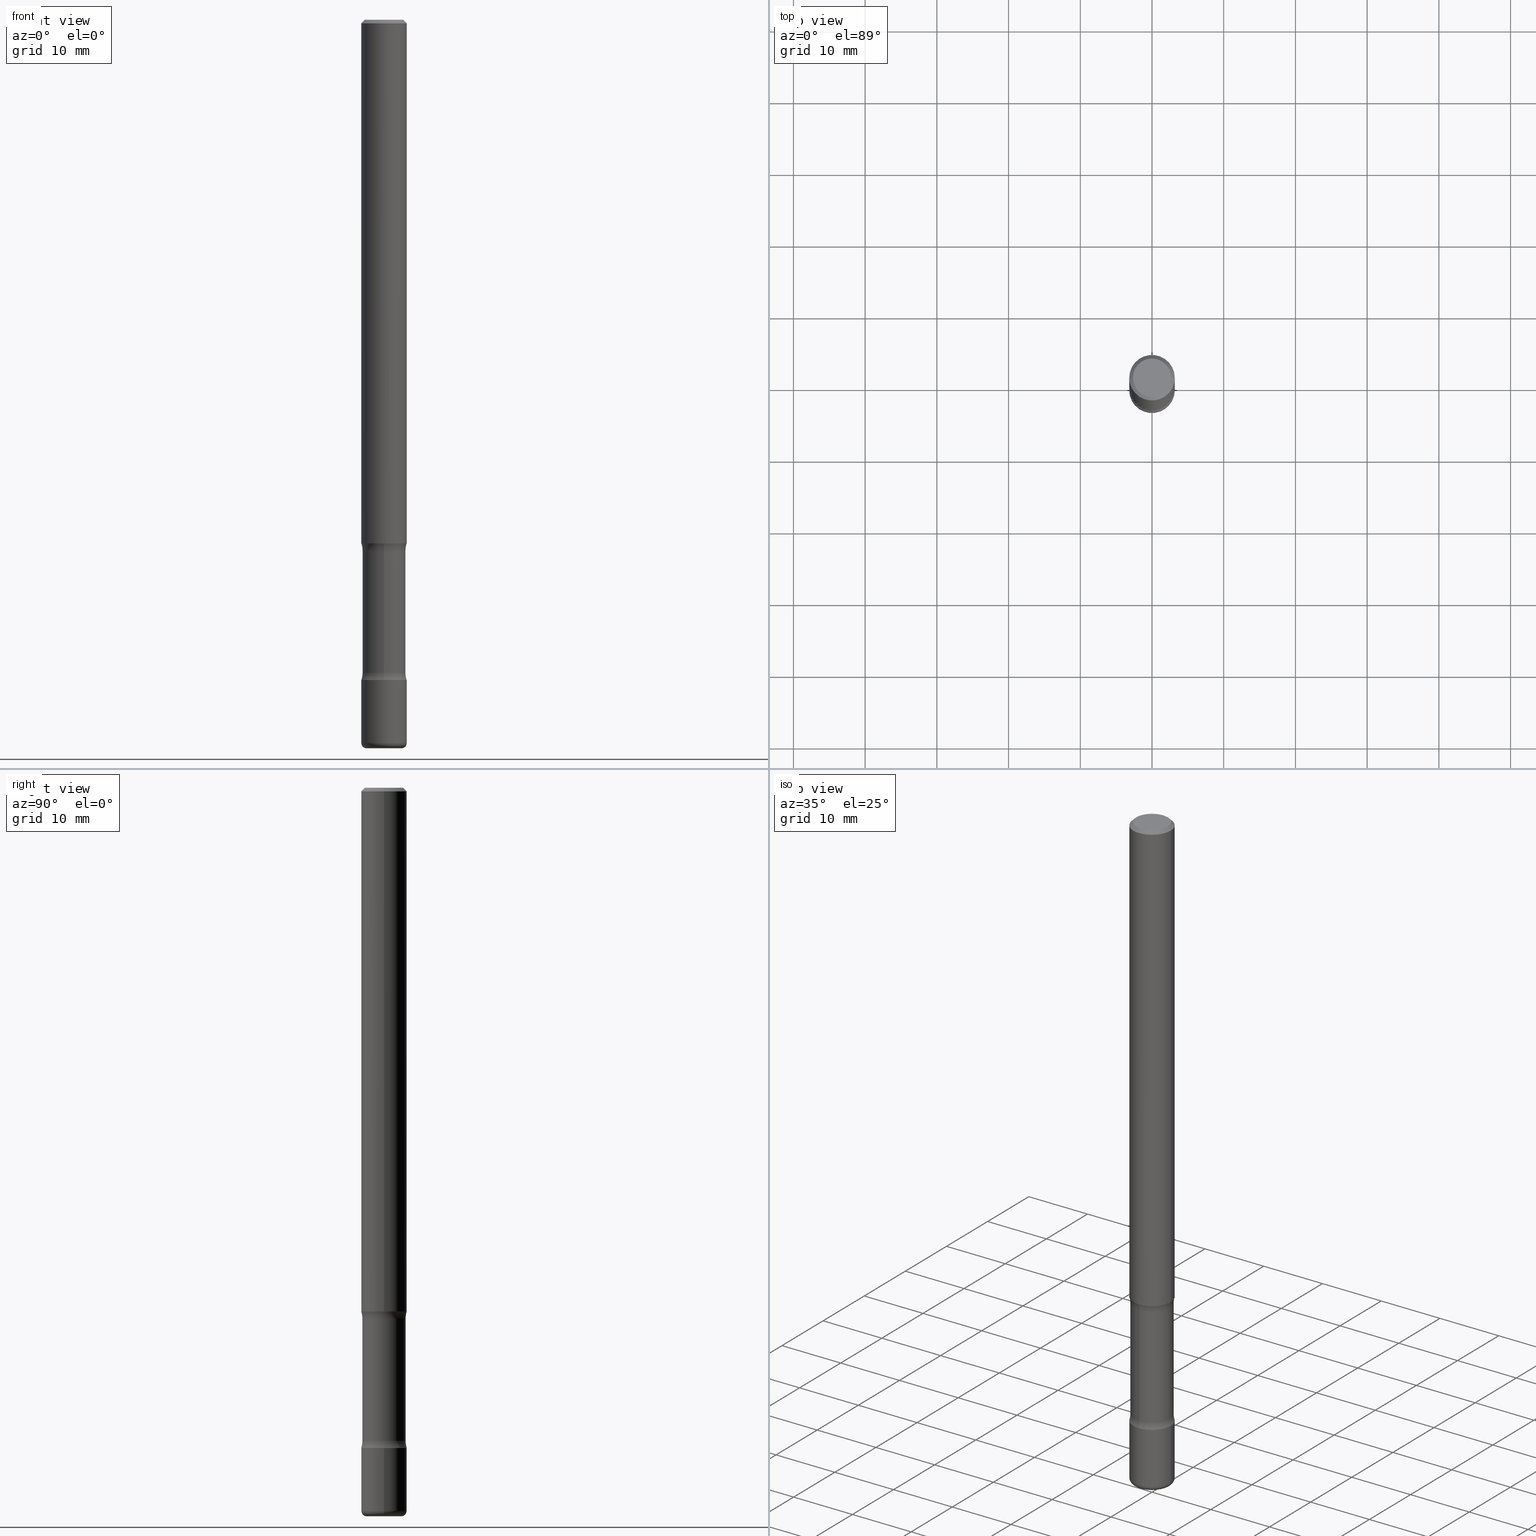
[diagram: canonical four-view strip — front | top / right | iso, engineering-drawing reading convention]
A machine part, canonical four-view strip (front | top / right | iso — engineering-drawing reading convention). The complete STEP part file that produces these views, byte-faithful:
ISO-10303-21;
HEADER;
FILE_DESCRIPTION (( 'STEP AP203' ),
    '1' );
FILE_NAME ('35180.STEP',
    '2024-03-01T23:18:33',
    ( '' ),
    ( '' ),
    'SwSTEP 2.0',
    'SolidWorks 2023',
    '' );
FILE_SCHEMA (( 'CONFIG_CONTROL_DESIGN' ));
ENDSEC;

DATA;
#1 = EDGE_LOOP ( 'NONE', ( #332, #234, #474, #242 ) ) ;
#2 = MANIFOLD_SOLID_BREP ( 'Body-Move/Copy2[4]', #68 ) ;
#3 = DIRECTION ( 'NONE',  ( -2.445468806185136597E-29, 3.491481338843145583E-15, 1.000000000000000000 ) ) ;
#4 = ORIENTED_EDGE ( 'NONE', *, *, #256, .T. ) ;
#5 = CARTESIAN_POINT ( 'NONE',  ( 0.1250000000000003053, -9.273918764983065184E-16, -0.02000000000000000042 ) ) ;
#6 = EDGE_LOOP ( 'NONE', ( #233, #529 ) ) ;
#7 = CARTESIAN_POINT ( 'NONE',  ( -8.575622497213667993E-16, -0.1250000000000094369, -2.874999999999999112 ) ) ;
#8 = FACE_OUTER_BOUND ( 'NONE', #57, .T. ) ;
#9 = ORIENTED_EDGE ( 'NONE', *, *, #169, .F. ) ;
#10 = ORIENTED_EDGE ( 'NONE', *, *, #407, .T. ) ;
#11 = EDGE_CURVE ( 'NONE', #224, #275, #52, .T. ) ;
#12 = DIRECTION ( 'NONE',  ( 1.000000000000000000, -6.982962677686266711E-15, 4.876176775795935793E-29 ) ) ;
#13 = ORIENTED_EDGE ( 'NONE', *, *, #51, .T. ) ;
#14 = CC_DESIGN_DATE_AND_TIME_ASSIGNMENT ( #299, #295, ( #546 ) ) ;
#15 = DIRECTION ( 'NONE',  ( -2.445468806185136877E-29, 3.491481338843145188E-15, 1.000000000000000000 ) ) ;
#16 = VERTEX_POINT ( 'NONE', #452 ) ;
#17 = AXIS2_PLACEMENT_3D ( 'NONE', #156, #325, #409 ) ;
#18 = CIRCLE ( 'NONE', #383, 0.1250000000000007216 ) ;
#19 = DIRECTION ( 'NONE',  ( 6.982962677686265922E-15, 1.000000000000000000, -4.610713913357408992E-15 ) ) ;
#20 = ORIENTED_EDGE ( 'NONE', *, *, #209, .F. ) ;
#21 = EDGE_CURVE ( 'NONE', #22, #70, #181, .T. ) ;
#22 = VERTEX_POINT ( 'NONE', #445 ) ;
#23 = CARTESIAN_POINT ( 'NONE',  ( 7.371511363986941038E-29, -9.549980254529470283E-15, -2.875000000000000000 ) ) ;
#24 = DIRECTION ( 'NONE',  ( -2.445468806185136597E-29, 3.491481338843145583E-15, 1.000000000000000000 ) ) ;
#25 = VERTEX_POINT ( 'NONE', #53 ) ;
#26 = AXIS2_PLACEMENT_3D ( 'NONE', #125, #184, #171 ) ;
#27 = AXIS2_PLACEMENT_3D ( 'NONE', #548, #416, #293 ) ;
#28 = EDGE_CURVE ( 'NONE', #229, #25, #538, .T. ) ;
#29 = DIRECTION ( 'NONE',  ( 2.438088387897960049E-29, -3.491481338843145188E-15, -1.000000000000000000 ) ) ;
#30 = CARTESIAN_POINT ( 'NONE',  ( 7.461849707020489803E-29, -9.698839812992284778E-15, -2.914783790669067010 ) ) ;
#31 = DIRECTION ( 'NONE',  ( -1.000000000000000000, 6.982962677686265922E-15, 0.000000000000000000 ) ) ;
#32 = CC_DESIGN_PERSON_AND_ORGANIZATION_ASSIGNMENT ( #338, #178, ( #546 ) ) ;
#33 = AXIS2_PLACEMENT_3D ( 'NONE', #476, #310, #152 ) ;
#34 = FACE_OUTER_BOUND ( 'NONE', #6, .T. ) ;
#35 = CARTESIAN_POINT ( 'NONE',  ( 8.791379894074205653E-29, -1.248356739067611129E-14, -3.585216209330933435 ) ) ;
#36 = DIRECTION ( 'NONE',  ( 1.991084077912239862E-29, -4.142186131702575093E-15, -1.000000000000000000 ) ) ;
#37 = DIRECTION ( 'NONE',  ( 1.000000000000000000, -6.982962677686273810E-15, 0.000000000000000000 ) ) ;
#38 = APPROVAL_ROLE ( '' ) ;
#39 = CYLINDRICAL_SURFACE ( 'NONE', #208, 0.1184999999999996750 ) ;
#40 = EDGE_CURVE ( 'NONE', #88, #70, #304, .T. ) ;
#41 = AXIS2_PLACEMENT_3D ( 'NONE', #113, #29, #282 ) ;
#42 = DIMENSIONAL_EXPONENTS ( 1.000000000000000000, 0.000000000000000000, 0.000000000000000000, 0.000000000000000000, 0.000000000000000000, 0.000000000000000000, 0.000000000000000000 ) ;
#43 = ADVANCED_FACE ( 'NONE', ( #63 ), #279, .T. ) ;
#44 = CARTESIAN_POINT ( 'NONE',  ( -0.1050000000000003847, 7.681258945454915470E-16, -4.695363739110977184E-17 ) ) ;
#45 = PERSON_AND_ORGANIZATION_ROLE ( 'design_owner' ) ;
#46 = PLANE ( 'NONE',  #215 ) ;
#47 = APPROVAL ( #516, 'UNSPECIFIED' ) ;
#48 = ORIENTED_EDGE ( 'NONE', *, *, #400, .T. ) ;
#49 = DIRECTION ( 'NONE',  ( 1.991084077912239862E-29, -4.142186131702575093E-15, -1.000000000000000000 ) ) ;
#50 = ORIENTED_EDGE ( 'NONE', *, *, #169, .T. ) ;
#51 = EDGE_CURVE ( 'NONE', #358, #359, #274, .T. ) ;
#52 = CIRCLE ( 'NONE', #17, 0.1050000000000003847 ) ;
#53 = CARTESIAN_POINT ( 'NONE',  ( -0.09500000000000041744, -1.313195612595381844E-14, -4.000000000000000000 ) ) ;
#54 = ORIENTED_EDGE ( 'NONE', *, *, #549, .F. ) ;
#55 = ORGANIZATION ( 'UNSPECIFIED', 'UNSPECIFIED', '' ) ;
#56 = PLANE ( 'NONE',  #138 ) ;
#57 = EDGE_LOOP ( 'NONE', ( #100, #347, #361, #367 ) ) ;
#58 = ORIENTED_EDGE ( 'NONE', *, *, #84, .F. ) ;
#59 = CARTESIAN_POINT ( 'NONE',  ( 8.864824422421121284E-29, -1.265661985330640417E-14, -3.625000000000000444 ) ) ;
#60 = CC_DESIGN_PERSON_AND_ORGANIZATION_ASSIGNMENT ( #432, #425, ( #371 ) ) ;
#61 = ORIENTED_EDGE ( 'NONE', *, *, #301, .F. ) ;
#62 = DIRECTION ( 'NONE',  ( 6.982962677686265922E-15, 1.000000000000000000, -4.370956789862825883E-15 ) ) ;
#63 = FACE_OUTER_BOUND ( 'NONE', #187, .T. ) ;
#64 = DIRECTION ( 'NONE',  ( 1.000000000000000000, -6.860497997771530774E-15, 4.832830044206491298E-29 ) ) ;
#65 = DIRECTION ( 'NONE',  ( 6.982962677686266711E-15, 1.000000000000000000, -4.370956789862808528E-15 ) ) ;
#66 = CARTESIAN_POINT ( 'NONE',  ( 8.864824422421121284E-29, -1.265661985330640417E-14, -3.625000000000000444 ) ) ;
#67 = EDGE_CURVE ( 'NONE', #536, #356, #296, .T. ) ;
#68 = CLOSED_SHELL ( 'NONE', ( #258, #503, #72, #160, #331, #170, #188, #457 ) ) ;
#69 = AXIS2_PLACEMENT_3D ( 'NONE', #484, #97, #276 ) ;
#70 = VERTEX_POINT ( 'NONE', #240 ) ;
#71 =( NAMED_UNIT ( * ) SI_UNIT ( $, .STERADIAN. ) SOLID_ANGLE_UNIT ( ) );
#72 = ADVANCED_FACE ( 'NONE', ( #408 ), #413, .F. ) ;
#73 = DIRECTION ( 'NONE',  ( -1.000000000000000000, 6.982962677686265922E-15, -4.883557194083112340E-29 ) ) ;
#74 = DIRECTION ( 'NONE',  ( 6.982962677686266711E-15, 1.000000000000000000, -4.370956789862808528E-15 ) ) ;
#75 = ADVANCED_FACE ( 'NONE', ( #34 ), #502, .F. ) ;
#76 = PLANE ( 'NONE',  #41 ) ;
#77 = CIRCLE ( 'NONE', #462, 0.1250000000000003608 ) ;
#78 = APPROVAL_PERSON_ORGANIZATION ( #342, #552, #470 ) ;
#79 = COORDINATED_UNIVERSAL_TIME_OFFSET ( 5, 0, .BEHIND. ) ;
#80 = DIRECTION ( 'NONE',  ( -2.445468806185136597E-29, 3.491481338843145583E-15, 1.000000000000000000 ) ) ;
#81 = PERSON_AND_ORGANIZATION ( #504, #55 ) ;
#82 = EDGE_CURVE ( 'NONE', #224, #16, #379, .T. ) ;
#83 = DIRECTION ( 'NONE',  ( 1.000000000000000000, -6.982962677686266711E-15, 4.876176775795935793E-29 ) ) ;
#84 = EDGE_CURVE ( 'NONE', #431, #22, #333, .T. ) ;
#85 = DATE_AND_TIME ( #467, #499 ) ;
#86 = CARTESIAN_POINT ( 'NONE',  ( 9.611480951638210847E-29, -1.420993965269486716E-14, -4.000000000000000000 ) ) ;
#87 = AXIS2_PLACEMENT_3D ( 'NONE', #322, #196, #520 ) ;
#88 = VERTEX_POINT ( 'NONE', #7 ) ;
#89 = APPROVAL_DATE_TIME ( #174, #531 ) ;
#90 = CARTESIAN_POINT ( 'NONE',  ( 0.09500000000000041744, -1.462930680975278051E-14, -4.000000000000000000 ) ) ;
#91 = CARTESIAN_POINT ( 'NONE',  ( 0.1250000000000006384, -1.091087918388483276E-14, -2.875000000000000000 ) ) ;
#92 = ORIENTED_EDGE ( 'NONE', *, *, #21, .T. ) ;
#93 = CALENDAR_DATE ( 2024, 1, 3 ) ;
#94 = CARTESIAN_POINT ( 'NONE',  ( -2.199483274483249435E-29, -2.850133821655908390E-14, -3.624999999999999556 ) ) ;
#95 = EDGE_LOOP ( 'NONE', ( #541, #477, #147, #144 ) ) ;
#96 = ORIENTED_EDGE ( 'NONE', *, *, #308, .F. ) ;
#97 = DIRECTION ( 'NONE',  ( -2.445468806185136597E-29, 3.491481338843145583E-15, 1.000000000000000000 ) ) ;
#98 = TOROIDAL_SURFACE ( 'NONE', #328, 0.09500000000000032030, 0.03000000000000044992 ) ;
#99 = DIRECTION ( 'NONE',  ( -6.982962677686265922E-15, -1.000000000000000000, 0.000000000000000000 ) ) ;
#100 = ORIENTED_EDGE ( 'NONE', *, *, #250, .F. ) ;
#101 = PRODUCT_DEFINITION ( 'UNKNOWN', '', #371, #540 ) ;
#102 = CIRCLE ( 'NONE', #289, 0.1250000000000007216 ) ;
#103 = FACE_OUTER_BOUND ( 'NONE', #392, .T. ) ;
#104 = DIRECTION ( 'NONE',  ( -1.000000000000000000, 6.982962677686265922E-15, 0.000000000000000000 ) ) ;
#105 = ORIENTED_EDGE ( 'NONE', *, *, #250, .T. ) ;
#106 = DIRECTION ( 'NONE',  ( -2.445468806185136597E-29, 3.491481338843145583E-15, 1.000000000000000000 ) ) ;
#107 = ORIENTED_EDGE ( 'NONE', *, *, #495, .F. ) ;
#108 = ADVANCED_FACE ( 'NONE', ( #190 ), #98, .T. ) ;
#109 = CYLINDRICAL_SURFACE ( 'NONE', #415, 0.1250000000000004718 ) ;
#110 = DIRECTION ( 'NONE',  ( 6.982962677686265922E-15, 1.000000000000000000, -4.370956789862825883E-15 ) ) ;
#111 = VECTOR ( 'NONE', #15, 39.37007874015748143 ) ;
#112 = CARTESIAN_POINT ( 'NONE',  ( -0.1250000000000006384, -4.165740818275317715E-15, -2.875000000000000000 ) ) ;
#113 = CARTESIAN_POINT ( 'NONE',  ( 9.781875224740546387E-29, -1.396592535537258233E-14, -4.000000000000000000 ) ) ;
#114 = CARTESIAN_POINT ( 'NONE',  ( 8.274810773059163455E-16, 0.1184999999999854642, -4.000000000000000888 ) ) ;
#115 = VERTEX_POINT ( 'NONE', #91 ) ;
#116 = CC_DESIGN_PERSON_AND_ORGANIZATION_ASSIGNMENT ( #475, #420, ( #101 ) ) ;
#117 = DIRECTION ( 'NONE',  ( -2.445468806185136877E-29, 3.491481338843145188E-15, 1.000000000000000000 ) ) ;
#118 = VECTOR ( 'NONE', #557, 39.37007874015748143 ) ;
#119 = AXIS2_PLACEMENT_3D ( 'NONE', #418, #330, #31 ) ;
#120 = CARTESIAN_POINT ( 'NONE',  ( 9.781875224740546387E-29, -1.396592535537258233E-14, -4.000000000000000000 ) ) ;
#121 = DIRECTION ( 'NONE',  ( 1.000000000000000000, -6.982962677686271444E-15, 0.000000000000000000 ) ) ;
#122 = ORIENTED_EDGE ( 'NONE', *, *, #209, .T. ) ;
#123 = CARTESIAN_POINT ( 'NONE',  ( 7.332110811570605881E-16, 0.1050000000000003847, -3.900823592740838734E-16 ) ) ;
#124 = PERSON_AND_ORGANIZATION ( #504, #55 ) ;
#125 = CARTESIAN_POINT ( 'NONE',  ( 7.450724236147113002E-29, -9.714772120505436887E-15, -2.914783790669067010 ) ) ;
#126 = LOCAL_TIME ( 18, 18, 33.00000000000000000, #79 ) ;
#127 = CC_DESIGN_APPROVAL ( #47, ( #546 ) ) ;
#128 = PERSON_AND_ORGANIZATION ( #504, #55 ) ;
#129 = EDGE_CURVE ( 'NONE', #229, #401, #414, .T. ) ;
#130 = PLANE ( 'NONE',  #381 ) ;
#131 = UNCERTAINTY_MEASURE_WITH_UNIT (LENGTH_MEASURE( 1.000000000000000082E-05 ), #500, 'distance_accuracy_value', 'NONE');
#132 = CALENDAR_DATE ( 2024, 1, 3 ) ;
#133 = FACE_OUTER_BOUND ( 'NONE', #183, .T. ) ;
#134 = PERSON_AND_ORGANIZATION_ROLE ( 'design_supplier' ) ;
#135 = DIRECTION ( 'NONE',  ( 7.105427357601001859E-15, 1.000000000000000000, -3.491481338843145583E-15 ) ) ;
#136 = TOROIDAL_SURFACE ( 'NONE', #252, 0.2434999999999992726, 0.1249999999999999306 ) ;
#137 = DIRECTION ( 'NONE',  ( 1.000000000000000000, -6.982962677686266711E-15, 4.883557194083112901E-29 ) ) ;
#138 = AXIS2_PLACEMENT_3D ( 'NONE', #239, #155, #444 ) ;
#139 = PRODUCT_DEFINITION_SHAPE ( 'NONE', 'NONE',  #101 ) ;
#140 = FACE_OUTER_BOUND ( 'NONE', #286, .T. ) ;
#141 = ORIENTED_EDGE ( 'NONE', *, *, #40, .T. ) ;
#142 = DIRECTION ( 'NONE',  ( 1.991084077912239862E-29, -4.142186131702575093E-15, -1.000000000000000000 ) ) ;
#143 = CARTESIAN_POINT ( 'NONE',  ( 4.890937612370273159E-31, -6.982962677686291609E-17, -0.02000000000000000042 ) ) ;
#144 = ORIENTED_EDGE ( 'NONE', *, *, #129, .F. ) ;
#145 = DIRECTION ( 'NONE',  ( -1.000000000000000000, 6.982962677686265922E-15, -4.883557194083112340E-29 ) ) ;
#146 = CARTESIAN_POINT ( 'NONE',  ( 9.611480951638210847E-29, -1.420993965269486716E-14, -4.000000000000000000 ) ) ;
#147 = ORIENTED_EDGE ( 'NONE', *, *, #294, .F. ) ;
#148 = AXIS2_PLACEMENT_3D ( 'NONE', #391, #518, #422 ) ;
#149 = CIRCLE ( 'NONE', #280, 0.1249999999999998751 ) ;
#150 = DIRECTION ( 'NONE',  ( 1.000000000000000000, -6.982962677686271444E-15, 0.000000000000000000 ) ) ;
#151 = ORIENTED_EDGE ( 'NONE', *, *, #82, .T. ) ;
#152 = DIRECTION ( 'NONE',  ( 1.000000000000000000, -6.982962677686265922E-15, 4.876176775795935232E-29 ) ) ;
#153 = VERTEX_POINT ( 'NONE', #343 ) ;
#154 = CARTESIAN_POINT ( 'NONE',  ( -0.1250000000000005551, 8.881784197001291766E-16, -6.148668862818658852E-30 ) ) ;
#155 = DIRECTION ( 'NONE',  ( 1.991084077912239581E-29, -4.142186131702575093E-15, -1.000000000000000000 ) ) ;
#156 = CARTESIAN_POINT ( 'NONE',  ( 1.148236555768741665E-45, -1.639377487418492057E-31, -4.695363739110452099E-17 ) ) ;
#157 = CARTESIAN_POINT ( 'NONE',  ( 0.000000000000000000, 0.000000000000000000, 0.000000000000000000 ) ) ;
#158 = CC_DESIGN_PERSON_AND_ORGANIZATION_ASSIGNMENT ( #128, #45, ( #352 ) ) ;
#159 = DIRECTION ( 'NONE',  ( 1.991084077912239862E-29, -4.142186131702575093E-15, -1.000000000000000000 ) ) ;
#160 = ADVANCED_FACE ( 'NONE', ( #468 ), #136, .F. ) ;
#161 = CC_DESIGN_APPROVAL ( #552, ( #101 ) ) ;
#162 = FACE_OUTER_BOUND ( 'NONE', #231, .T. ) ;
#163 = CARTESIAN_POINT ( 'NONE',  ( 0.000000000000000000, 0.000000000000000000, 0.000000000000000000 ) ) ;
#164 = EDGE_CURVE ( 'NONE', #275, #224, #207, .T. ) ;
#165 = DIRECTION ( 'NONE',  ( 1.000000000000000000, 0.000000000000000000, 0.000000000000000000 ) ) ;
#166 = AXIS2_PLACEMENT_3D ( 'NONE', #163, #492, #375 ) ;
#167 = APPLICATION_PROTOCOL_DEFINITION ( 'international standard', 'config_control_design', 1994, #455 ) ;
#168 = APPLICATION_PROTOCOL_DEFINITION ( 'international standard', 'config_control_design', 1994, #180 ) ;
#169 = EDGE_CURVE ( 'NONE', #494, #359, #77, .T. ) ;
#170 = ADVANCED_FACE ( 'NONE', ( #344 ), #46, .F. ) ;
#171 = DIRECTION ( 'NONE',  ( 6.982962677686265922E-15, 1.000000000000000000, -4.610713913357430291E-15 ) ) ;
#172 = CIRCLE ( 'NONE', #319, 0.09500000000000041744 ) ;
#173 = CIRCLE ( 'NONE', #498, 0.1250000000000006384 ) ;
#174 = DATE_AND_TIME ( #132, #126 ) ;
#175 = CARTESIAN_POINT ( 'NONE',  ( -8.575622497213553609E-16, -0.1250000000000130729, -3.624999999999999556 ) ) ;
#176 = DIRECTION ( 'NONE',  ( 1.000000000000000000, -6.982962677686266711E-15, 4.874400871621220839E-29 ) ) ;
#177 = CARTESIAN_POINT ( 'NONE',  ( 9.708511160554990630E-29, -1.386118091520728581E-14, -3.969999999999999307 ) ) ;
#178 = PERSON_AND_ORGANIZATION_ROLE ( 'classification_officer' ) ;
#179 = DIRECTION ( 'NONE',  ( 6.982962677686265922E-15, 1.000000000000000000, -4.142186131702575093E-15 ) ) ;
#180 = APPLICATION_CONTEXT ( 'configuration controlled 3d designs of mechanical parts and assemblies' ) ;
#181 = CIRCLE ( 'NONE', #339, 0.1249999999999999306 ) ;
#182 = AXIS2_PLACEMENT_3D ( 'NONE', #446, #64, #488 ) ;
#183 = EDGE_LOOP ( 'NONE', ( #429, #105, #514, #439 ) ) ;
#184 = DIRECTION ( 'NONE',  ( 1.991084077912239862E-29, -4.142186131702575093E-15, -1.000000000000000000 ) ) ;
#185 = ORIENTED_EDGE ( 'NONE', *, *, #129, .T. ) ;
#186 = CARTESIAN_POINT ( 'NONE',  ( 8.274810773059099360E-16, 0.1184999999999874487, -3.585216209330933879 ) ) ;
#187 = EDGE_LOOP ( 'NONE', ( #263, #151, #122, #268 ) ) ;
#188 = ADVANCED_FACE ( 'NONE', ( #469 ), #526, .F. ) ;
#189 = ORIENTED_EDGE ( 'NONE', *, *, #40, .F. ) ;
#190 = FACE_OUTER_BOUND ( 'NONE', #317, .T. ) ;
#191 = DIRECTION ( 'NONE',  ( -2.445468806185136597E-29, 3.491481338843145583E-15, 1.000000000000000000 ) ) ;
#192 = ADVANCED_BREP_SHAPE_REPRESENTATION ( '35180', ( #202, #198, #2, #217 ), #377 ) ;
#193 = AXIS2_PLACEMENT_3D ( 'NONE', #281, #159, #490 ) ;
#194 = DIRECTION ( 'NONE',  ( 1.000000000000000000, -6.982962677686266711E-15, 4.883557194083112901E-29 ) ) ;
#195 = ORIENTED_EDGE ( 'NONE', *, *, #164, .F. ) ;
#196 = DIRECTION ( 'NONE',  ( -2.438088387897960049E-29, 3.491481338843145188E-15, 1.000000000000000000 ) ) ;
#197 = CARTESIAN_POINT ( 'NONE',  ( -0.1250000000000003608, -1.237072196455671739E-14, -3.625000000000000444 ) ) ;
#198 = MANIFOLD_SOLID_BREP ( 'Body-Move/Copy2[2]', #370 ) ;
#199 = AXIS2_PLACEMENT_3D ( 'NONE', #558, #80, #513 ) ;
#200 = AXIS2_PLACEMENT_3D ( 'NONE', #66, #290, #74 ) ;
#201 = DIRECTION ( 'NONE',  ( 6.982962677686265922E-15, 1.000000000000000000, -4.142186131702575093E-15 ) ) ;
#202 = MANIFOLD_SOLID_BREP ( 'Body-Move/Copy2[1]', #362 ) ;
#203 = FACE_OUTER_BOUND ( 'NONE', #525, .T. ) ;
#204 = ORIENTED_EDGE ( 'NONE', *, *, #51, .F. ) ;
#205 = DIRECTION ( 'NONE',  ( 6.982962677686265922E-15, 1.000000000000000000, -4.142186131702575093E-15 ) ) ;
#206 = CARTESIAN_POINT ( 'NONE',  ( 0.000000000000000000, 0.000000000000000000, 0.000000000000000000 ) ) ;
#207 = CIRCLE ( 'NONE', #553, 0.1050000000000003847 ) ;
#208 = AXIS2_PLACEMENT_3D ( 'NONE', #86, #216, #555 ) ;
#209 = EDGE_CURVE ( 'NONE', #16, #238, #447, .T. ) ;
#210 = EDGE_CURVE ( 'NONE', #25, #358, #288, .T. ) ;
#211 = PERSON_AND_ORGANIZATION ( #504, #55 ) ;
#212 = EDGE_CURVE ( 'NONE', #22, #431, #270, .T. ) ;
#213 = COORDINATED_UNIVERSAL_TIME_OFFSET ( 5, 0, .BEHIND. ) ;
#214 = LINE ( 'NONE', #380, #118 ) ;
#215 = AXIS2_PLACEMENT_3D ( 'NONE', #94, #222, #509 ) ;
#216 = DIRECTION ( 'NONE',  ( 1.991084077912239862E-29, -4.142186131702575093E-15, -1.000000000000000000 ) ) ;
#217 = AXIS2_PLACEMENT_3D ( 'NONE', #206, #543, #165 ) ;
#218 = DATE_AND_TIME ( #378, #297 ) ;
#219 = CYLINDRICAL_SURFACE ( 'NONE', #33, 0.1250000000000005551 ) ;
#220 = ADVANCED_FACE ( 'NONE', ( #384 ), #130, .F. ) ;
#221 = COORDINATED_UNIVERSAL_TIME_OFFSET ( 5, 0, .BEHIND. ) ;
#222 = DIRECTION ( 'NONE',  ( -1.991084077912239581E-29, 4.142186131702575093E-15, 1.000000000000000000 ) ) ;
#223 = ORIENTED_EDGE ( 'NONE', *, *, #28, .F. ) ;
#224 = VERTEX_POINT ( 'NONE', #255 ) ;
#225 = CARTESIAN_POINT ( 'NONE',  ( 1.148236555768741665E-45, -1.639377487418492057E-31, -4.695363739110452099E-17 ) ) ;
#226 = AXIS2_PLACEMENT_3D ( 'NONE', #406, #313, #19 ) ;
#227 = ORIENTED_EDGE ( 'NONE', *, *, #450, .T. ) ;
#228 = CARTESIAN_POINT ( 'NONE',  ( -0.1250000000000007494, -1.297300249550715584E-14, -3.969999999999999307 ) ) ;
#229 = VERTEX_POINT ( 'NONE', #90 ) ;
#230 = ADVANCED_FACE ( 'NONE', ( #300 ), #298, .T. ) ;
#231 = EDGE_LOOP ( 'NONE', ( #204, #48, #485, #442 ) ) ;
#232 = FACE_OUTER_BOUND ( 'NONE', #473, .T. ) ;
#233 = ORIENTED_EDGE ( 'NONE', *, *, #164, .T. ) ;
#234 = ORIENTED_EDGE ( 'NONE', *, *, #301, .T. ) ;
#235 = LINE ( 'NONE', #402, #479 ) ;
#236 = CIRCLE ( 'NONE', #527, 0.1184999999999999387 ) ;
#237 = CARTESIAN_POINT ( 'NONE',  ( 1.700351412016693373E-15, 0.2434999999999874765, -3.585216209330934323 ) ) ;
#238 = VERTEX_POINT ( 'NONE', #423 ) ;
#239 = CARTESIAN_POINT ( 'NONE',  ( 7.030722817782267716E-29, -1.003800884917404311E-14, -2.875000000000000000 ) ) ;
#240 = CARTESIAN_POINT ( 'NONE',  ( 8.728703347108566043E-16, 0.1249999999999903688, -2.875000000000000444 ) ) ;
#241 = CARTESIAN_POINT ( 'NONE',  ( 7.030722817782267716E-29, -1.003800884917404311E-14, -2.875000000000000000 ) ) ;
#242 = ORIENTED_EDGE ( 'NONE', *, *, #67, .F. ) ;
#243 = ORIENTED_EDGE ( 'NONE', *, *, #522, .T. ) ;
#244 = AXIS2_PLACEMENT_3D ( 'NONE', #324, #530, #150 ) ;
#245 = DIRECTION ( 'NONE',  ( -2.445468806185136877E-29, 3.491481338843145188E-15, 1.000000000000000000 ) ) ;
#246 = CC_DESIGN_SECURITY_CLASSIFICATION ( #546, ( #371 ) ) ;
#247 = ORIENTED_EDGE ( 'NONE', *, *, #458, .F. ) ;
#248 = EDGE_CURVE ( 'NONE', #431, #88, #349, .T. ) ;
#249 = DIRECTION ( 'NONE',  ( 1.991084077912239862E-29, -4.142186131702575093E-15, -1.000000000000000000 ) ) ;
#250 = EDGE_CURVE ( 'NONE', #431, #153, #214, .T. ) ;
#251 = CARTESIAN_POINT ( 'NONE',  ( 0.1250000000000003608, -1.352949018801719066E-14, -3.625000000000000444 ) ) ;
#252 = AXIS2_PLACEMENT_3D ( 'NONE', #466, #49, #179 ) ;
#253 = LOCAL_TIME ( 18, 18, 33.00000000000000000, #303 ) ;
#254 = DIRECTION ( 'NONE',  ( -1.000000000000000000, 6.982962677686265922E-15, -4.876176775795935793E-29 ) ) ;
#255 = CARTESIAN_POINT ( 'NONE',  ( 0.1050000000000003847, -8.238720831321601296E-16, -4.695363739109907908E-17 ) ) ;
#256 = EDGE_CURVE ( 'NONE', #275, #238, #551, .T. ) ;
#257 = COORDINATED_UNIVERSAL_TIME_OFFSET ( 5, 0, .BEHIND. ) ;
#258 = ADVANCED_FACE ( 'NONE', ( #133 ), #39, .T. ) ;
#259 = DIRECTION ( 'NONE',  ( -2.445468806185136597E-29, 3.491481338843145583E-15, 1.000000000000000000 ) ) ;
#260 = DIRECTION ( 'NONE',  ( 2.438088387897960049E-29, -3.491481338843145188E-15, -1.000000000000000000 ) ) ;
#261 = EDGE_LOOP ( 'NONE', ( #10, #287, #20, #524 ) ) ;
#262 = SHAPE_DEFINITION_REPRESENTATION ( #139, #192 ) ;
#263 = ORIENTED_EDGE ( 'NONE', *, *, #11, .F. ) ;
#264 = CARTESIAN_POINT ( 'NONE',  ( 0.09500000000000032030, -1.452456236958748398E-14, -3.969999999999999307 ) ) ;
#265 = ORIENTED_EDGE ( 'NONE', *, *, #67, .T. ) ;
#266 = APPROVAL_STATUS ( 'not_yet_approved' ) ;
#267 = VERTEX_POINT ( 'NONE', #175 ) ;
#268 = ORIENTED_EDGE ( 'NONE', *, *, #256, .F. ) ;
#269 = CARTESIAN_POINT ( 'NONE',  ( 9.708511160554990630E-29, -1.386118091520728581E-14, -3.969999999999999307 ) ) ;
#270 = CIRCLE ( 'NONE', #26, 0.1184999999999993836 ) ;
#271 = APPROVAL_PERSON_ORGANIZATION ( #124, #531, #348 ) ;
#272 = DIRECTION ( 'NONE',  ( 1.991084077912239862E-29, -4.142186131702575093E-15, -1.000000000000000000 ) ) ;
#273 = EDGE_LOOP ( 'NONE', ( #58, #396, #141, #403 ) ) ;
#274 = LINE ( 'NONE', #154, #111 ) ;
#275 = VERTEX_POINT ( 'NONE', #44 ) ;
#276 = DIRECTION ( 'NONE',  ( 1.000000000000000000, -6.982962677686273810E-15, 0.000000000000000000 ) ) ;
#277 = ORIENTED_EDGE ( 'NONE', *, *, #535, .T. ) ;
#278 = DIRECTION ( 'NONE',  ( 1.991084077912239862E-29, -4.142186131702575093E-15, -1.000000000000000000 ) ) ;
#279 = CONICAL_SURFACE ( 'NONE', #436, 0.1250000000000003053, 0.7853981633974476129 ) ;
#280 = AXIS2_PLACEMENT_3D ( 'NONE', #23, #278, #62 ) ;
#281 = CARTESIAN_POINT ( 'NONE',  ( 7.450724236147113002E-29, -9.714772120505436887E-15, -2.914783790669067010 ) ) ;
#282 = DIRECTION ( 'NONE',  ( -1.000000000000000000, 6.982962677686265922E-15, -4.876176775795935793E-29 ) ) ;
#283 = EDGE_LOOP ( 'NONE', ( #247, #353, #515, #559 ) ) ;
#284 = ADVANCED_FACE ( 'NONE', ( #140 ), #219, .T. ) ;
#285 = CARTESIAN_POINT ( 'NONE',  ( 8.785611550260948199E-29, -1.249182798733043599E-14, -3.585216209330933435 ) ) ;
#286 = EDGE_LOOP ( 'NONE', ( #373, #13, #9, #54 ) ) ;
#287 = ORIENTED_EDGE ( 'NONE', *, *, #458, .T. ) ;
#288 = CIRCLE ( 'NONE', #506, 0.03000000000000044992 ) ;
#289 = AXIS2_PLACEMENT_3D ( 'NONE', #269, #191, #437 ) ;
#290 = DIRECTION ( 'NONE',  ( 1.991084077912239862E-29, -4.142186131702575093E-15, -1.000000000000000000 ) ) ;
#291 = FACE_OUTER_BOUND ( 'NONE', #1, .T. ) ;
#292 = EDGE_CURVE ( 'NONE', #153, #356, #448, .T. ) ;
#293 = DIRECTION ( 'NONE',  ( 1.000000000000000000, -6.982962677686273810E-15, 0.000000000000000000 ) ) ;
#294 = EDGE_CURVE ( 'NONE', #401, #358, #102, .T. ) ;
#295 = DATE_TIME_ROLE ( 'classification_date' ) ;
#296 = CIRCLE ( 'NONE', #489, 0.1250000000000001388 ) ;
#297 = LOCAL_TIME ( 18, 18, 33.00000000000000000, #221 ) ;
#298 = CYLINDRICAL_SURFACE ( 'NONE', #424, 0.1250000000000004718 ) ;
#299 = DATE_AND_TIME ( #505, #405 ) ;
#300 = FACE_OUTER_BOUND ( 'NONE', #261, .T. ) ;
#301 = EDGE_CURVE ( 'NONE', #267, #153, #340, .T. ) ;
#302 = CARTESIAN_POINT ( 'NONE',  ( -0.09500000000000032030, -1.318616531623518924E-14, -3.969999999999999307 ) ) ;
#303 = COORDINATED_UNIVERSAL_TIME_OFFSET ( 5, 0, .BEHIND. ) ;
#304 = CIRCLE ( 'NONE', #390, 0.1249999999999998751 ) ;
#305 = DIRECTION ( 'NONE',  ( -1.000000000000000000, 7.105427357601012903E-15, 0.000000000000000000 ) ) ;
#306 = ORIENTED_EDGE ( 'NONE', *, *, #556, .T. ) ;
#307 = APPROVAL_PERSON_ORGANIZATION ( #81, #47, #38 ) ;
#308 = EDGE_CURVE ( 'NONE', #536, #267, #363, .T. ) ;
#309 = APPROVAL_DATE_TIME ( #382, #552 ) ;
#310 = DIRECTION ( 'NONE',  ( -2.445468806185136597E-29, 3.491481338843145583E-15, 1.000000000000000000 ) ) ;
#311 = CARTESIAN_POINT ( 'NONE',  ( 4.890937612370273159E-31, -6.982962677686291609E-17, -0.02000000000000000042 ) ) ;
#312 = ORIENTED_EDGE ( 'NONE', *, *, #210, .F. ) ;
#313 = DIRECTION ( 'NONE',  ( 1.991084077912239862E-29, -4.142186131702575093E-15, -1.000000000000000000 ) ) ;
#314 = ORIENTED_EDGE ( 'NONE', *, *, #308, .T. ) ;
#315 = EDGE_LOOP ( 'NONE', ( #314, #243 ) ) ;
#316 = CARTESIAN_POINT ( 'NONE',  ( 0.1250000000000007494, -1.473405124991807388E-14, -3.969999999999999307 ) ) ;
#317 = EDGE_LOOP ( 'NONE', ( #312, #277, #185, #399 ) ) ;
#318 = AXIS2_PLACEMENT_3D ( 'NONE', #511, #341, #389 ) ;
#319 = AXIS2_PLACEMENT_3D ( 'NONE', #120, #419, #121 ) ;
#320 = VERTEX_POINT ( 'NONE', #112 ) ;
#321 = ORIENTED_EDGE ( 'NONE', *, *, #535, .F. ) ;
#322 = CARTESIAN_POINT ( 'NONE',  ( 7.030722817782267716E-29, -1.003800884917404311E-14, -2.875000000000000000 ) ) ;
#323 = FACE_OUTER_BOUND ( 'NONE', #283, .T. ) ;
#324 = CARTESIAN_POINT ( 'NONE',  ( 9.781875224740546387E-29, -1.396592535537258233E-14, -4.000000000000000000 ) ) ;
#325 = DIRECTION ( 'NONE',  ( -2.445468806185136597E-29, 3.491481338843145583E-15, 1.000000000000000000 ) ) ;
#326 = DIRECTION ( 'NONE',  ( 1.000000000000000000, -6.982962677686265922E-15, 0.000000000000000000 ) ) ;
#327 = DIRECTION ( 'NONE',  ( 0.7071067811865469066, -7.319954787623252890E-15, -0.7071067811865479058 ) ) ;
#328 = AXIS2_PLACEMENT_3D ( 'NONE', #177, #346, #137 ) ;
#329 = TOROIDAL_SURFACE ( 'NONE', #554, 0.2434999999999999665, 0.1250000000000001388 ) ;
#330 = DIRECTION ( 'NONE',  ( 2.445468806185136597E-29, -3.491481338843145583E-15, -1.000000000000000000 ) ) ;
#331 = ADVANCED_FACE ( 'NONE', ( #232 ), #56, .F. ) ;
#332 = ORIENTED_EDGE ( 'NONE', *, *, #522, .F. ) ;
#333 = CIRCLE ( 'NONE', #193, 0.1184999999999993836 ) ;
#334 = TOROIDAL_SURFACE ( 'NONE', #517, 0.09500000000000032030, 0.03000000000000044992 ) ;
#335 = EDGE_CURVE ( 'NONE', #115, #16, #486, .T. ) ;
#336 = DIRECTION ( 'NONE',  ( 1.991084077912239862E-29, -4.142186131702575093E-15, -1.000000000000000000 ) ) ;
#337 = DIRECTION ( 'NONE',  ( 6.982962677686265922E-15, 1.000000000000000000, -4.610713913357408992E-15 ) ) ;
#338 = PERSON_AND_ORGANIZATION ( #504, #55 ) ;
#339 = AXIS2_PLACEMENT_3D ( 'NONE', #366, #145, #99 ) ;
#340 = CIRCLE ( 'NONE', #182, 0.1250000000000001388 ) ;
#341 = DIRECTION ( 'NONE',  ( 1.991084077912239862E-29, -4.142186131702575093E-15, -1.000000000000000000 ) ) ;
#342 = PERSON_AND_ORGANIZATION ( #504, #55 ) ;
#343 = CARTESIAN_POINT ( 'NONE',  ( -8.352656312285972766E-16, -0.1185000000000124565, -3.585216209330932546 ) ) ;
#344 = FACE_OUTER_BOUND ( 'NONE', #315, .T. ) ;
#345 = EDGE_LOOP ( 'NONE', ( #61, #96, #265, #306 ) ) ;
#346 = DIRECTION ( 'NONE',  ( -2.445468806185136597E-29, 3.491481338843145583E-15, 1.000000000000000000 ) ) ;
#347 = ORIENTED_EDGE ( 'NONE', *, *, #84, .T. ) ;
#348 = APPROVAL_ROLE ( '' ) ;
#349 = CIRCLE ( 'NONE', #148, 0.1249999999999999306 ) ;
#350 = DIRECTION ( 'NONE',  ( -2.445468806185136597E-29, 3.491481338843145583E-15, 1.000000000000000000 ) ) ;
#351 = AXIS2_PLACEMENT_3D ( 'NONE', #143, #368, #326 ) ;
#352 = PRODUCT ( '35180', '35180', '', ( #550 ) ) ;
#353 = ORIENTED_EDGE ( 'NONE', *, *, #495, .T. ) ;
#354 = DIRECTION ( 'NONE',  ( -6.982962677686266711E-15, -1.000000000000000000, 3.491481338843145583E-15 ) ) ;
#355 = CARTESIAN_POINT ( 'NONE',  ( 0.000000000000000000, 0.000000000000000000, 0.000000000000000000 ) ) ;
#356 = VERTEX_POINT ( 'NONE', #186 ) ;
#357 = CYLINDRICAL_SURFACE ( 'NONE', #393, 0.1184999999999996750 ) ;
#358 = VERTEX_POINT ( 'NONE', #228 ) ;
#359 = VERTEX_POINT ( 'NONE', #197 ) ;
#360 = CARTESIAN_POINT ( 'NONE',  ( 0.1250000000000004718, -8.728703347107865929E-16, 6.095220969744942862E-30 ) ) ;
#361 = ORIENTED_EDGE ( 'NONE', *, *, #512, .T. ) ;
#362 = CLOSED_SHELL ( 'NONE', ( #284, #364, #465, #108, #542, #220 ) ) ;
#363 = CIRCLE ( 'NONE', #426, 0.1250000000000003608 ) ;
#364 = ADVANCED_FACE ( 'NONE', ( #534 ), #334, .T. ) ;
#365 = DIRECTION ( 'NONE',  ( -2.445468806185136877E-29, 3.491481338843145188E-15, 1.000000000000000000 ) ) ;
#366 = CARTESIAN_POINT ( 'NONE',  ( 1.700351412016675427E-15, 0.2434999999999895581, -2.914783790669067898 ) ) ;
#367 = ORIENTED_EDGE ( 'NONE', *, *, #292, .F. ) ;
#368 = DIRECTION ( 'NONE',  ( -2.445468806185136597E-29, 3.491481338843145583E-15, 1.000000000000000000 ) ) ;
#369 = LINE ( 'NONE', #372, #471 ) ;
#370 = CLOSED_SHELL ( 'NONE', ( #230, #43, #501, #75, #417, #374 ) ) ;
#371 = PRODUCT_DEFINITION_FORMATION_WITH_SPECIFIED_SOURCE ( 'ANY', '', #352, .NOT_KNOWN. ) ;
#372 = CARTESIAN_POINT ( 'NONE',  ( 0.1250000000000005551, -8.728703347107870859E-16, 6.095220969744946366E-30 ) ) ;
#373 = ORIENTED_EDGE ( 'NONE', *, *, #294, .T. ) ;
#374 = ADVANCED_FACE ( 'NONE', ( #323 ), #109, .T. ) ;
#375 = DIRECTION ( 'NONE',  ( 1.000000000000000000, -6.982962677686265922E-15, 4.876176775795935232E-29 ) ) ;
#376 = AXIS2_PLACEMENT_3D ( 'NONE', #30, #36, #205 ) ;
#377 =( GEOMETRIC_REPRESENTATION_CONTEXT ( 3 ) GLOBAL_UNCERTAINTY_ASSIGNED_CONTEXT ( ( #131 ) ) GLOBAL_UNIT_ASSIGNED_CONTEXT ( ( #500, #412, #71 ) ) REPRESENTATION_CONTEXT ( 'NONE', 'WORKASPACE' ) );
#378 = CALENDAR_DATE ( 2024, 1, 3 ) ;
#379 = LINE ( 'NONE', #5, #544 ) ;
#380 = CARTESIAN_POINT ( 'NONE',  ( -8.129690127358280498E-16, -0.1185000000000138720, -3.999999999999999556 ) ) ;
#381 = AXIS2_PLACEMENT_3D ( 'NONE', #472, #260, #433 ) ;
#382 = DATE_AND_TIME ( #93, #253 ) ;
#383 = AXIS2_PLACEMENT_3D ( 'NONE', #410, #451, #395 ) ;
#384 = FACE_OUTER_BOUND ( 'NONE', #483, .T. ) ;
#385 = APPROVAL_DATE_TIME ( #85, #47 ) ;
#386 = CARTESIAN_POINT ( 'NONE',  ( 8.864824422421121284E-29, -1.265661985330640417E-14, -3.625000000000000444 ) ) ;
#387 = EDGE_LOOP ( 'NONE', ( #435, #397, #92, #434 ) ) ;
#388 = SECURITY_CLASSIFICATION_LEVEL ( 'unclassified' ) ;
#389 = DIRECTION ( 'NONE',  ( 6.982962677686265922E-15, 1.000000000000000000, -4.142186131702575093E-15 ) ) ;
#390 = AXIS2_PLACEMENT_3D ( 'NONE', #519, #142, #110 ) ;
#391 = CARTESIAN_POINT ( 'NONE',  ( -1.670531262457288033E-15, -0.2435000000000089593, -2.914783790669065677 ) ) ;
#392 = EDGE_LOOP ( 'NONE', ( #482, #107 ) ) ;
#393 = AXIS2_PLACEMENT_3D ( 'NONE', #146, #272, #441 ) ;
#394 = ORIENTED_EDGE ( 'NONE', *, *, #421, .T. ) ;
#395 = DIRECTION ( 'NONE',  ( 1.000000000000000000, -6.982962677686269077E-15, 0.000000000000000000 ) ) ;
#396 = ORIENTED_EDGE ( 'NONE', *, *, #248, .T. ) ;
#397 = ORIENTED_EDGE ( 'NONE', *, *, #212, .F. ) ;
#398 = CARTESIAN_POINT ( 'NONE',  ( 9.708511160554990630E-29, -1.386118091520728581E-14, -3.969999999999999307 ) ) ;
#399 = ORIENTED_EDGE ( 'NONE', *, *, #400, .F. ) ;
#400 = EDGE_CURVE ( 'NONE', #358, #401, #18, .T. ) ;
#401 = VERTEX_POINT ( 'NONE', #316 ) ;
#402 = CARTESIAN_POINT ( 'NONE',  ( -0.1250000000000004718, 8.881784197001285850E-16, -6.148668862818656049E-30 ) ) ;
#403 = ORIENTED_EDGE ( 'NONE', *, *, #21, .F. ) ;
#404 = CIRCLE ( 'NONE', #69, 0.1250000000000003608 ) ;
#405 = LOCAL_TIME ( 18, 18, 33.00000000000000000, #257 ) ;
#406 = CARTESIAN_POINT ( 'NONE',  ( 8.785611550260948199E-29, -1.249182798733043599E-14, -3.585216209330933435 ) ) ;
#407 = EDGE_CURVE ( 'NONE', #115, #320, #173, .T. ) ;
#408 = FACE_OUTER_BOUND ( 'NONE', #273, .T. ) ;
#409 = DIRECTION ( 'NONE',  ( 1.000000000000000000, -6.982962677686266711E-15, 4.874400871621220839E-29 ) ) ;
#410 = CARTESIAN_POINT ( 'NONE',  ( 9.708511160554990630E-29, -1.386118091520728581E-14, -3.969999999999999307 ) ) ;
#411 = EDGE_CURVE ( 'NONE', #70, #88, #149, .T. ) ;
#412 =( NAMED_UNIT ( * ) PLANE_ANGLE_UNIT ( ) SI_UNIT ( $, .RADIAN. ) );
#413 = TOROIDAL_SURFACE ( 'NONE', #376, 0.2434999999999992726, 0.1249999999999999306 ) ;
#414 = CIRCLE ( 'NONE', #560, 0.03000000000000044992 ) ;
#415 = AXIS2_PLACEMENT_3D ( 'NONE', #157, #523, #12 ) ;
#416 = DIRECTION ( 'NONE',  ( -2.445468806185136597E-29, 3.491481338843145583E-15, 1.000000000000000000 ) ) ;
#417 = ADVANCED_FACE ( 'NONE', ( #103 ), #478, .F. ) ;
#418 = CARTESIAN_POINT ( 'NONE',  ( 4.890937612370273159E-31, -6.982962677686291609E-17, -0.02000000000000000042 ) ) ;
#419 = DIRECTION ( 'NONE',  ( -2.445468806185136597E-29, 3.491481338843145583E-15, 1.000000000000000000 ) ) ;
#420 = PERSON_AND_ORGANIZATION_ROLE ( 'creator' ) ;
#421 = EDGE_CURVE ( 'NONE', #238, #16, #491, .T. ) ;
#422 = DIRECTION ( 'NONE',  ( 6.860497997771530774E-15, 1.000000000000000000, 0.000000000000000000 ) ) ;
#423 = CARTESIAN_POINT ( 'NONE',  ( -0.1250000000000003053, 8.030407079339224072E-16, -0.02000000000000000042 ) ) ;
#424 = AXIS2_PLACEMENT_3D ( 'NONE', #355, #3, #83 ) ;
#425 = PERSON_AND_ORGANIZATION_ROLE ( 'creator' ) ;
#426 = AXIS2_PLACEMENT_3D ( 'NONE', #59, #532, #65 ) ;
#427 = CARTESIAN_POINT ( 'NONE',  ( -0.1250000000000003053, 8.030407079339224072E-16, -0.02000000000000000042 ) ) ;
#428 = PRODUCT_RELATED_PRODUCT_CATEGORY ( 'detail', '', ( #352 ) ) ;
#429 = ORIENTED_EDGE ( 'NONE', *, *, #212, .T. ) ;
#430 = DIRECTION ( 'NONE',  ( -0.7071067811865469066, 2.468850131082251144E-15, -0.7071067811865479058 ) ) ;
#431 = VERTEX_POINT ( 'NONE', #528 ) ;
#432 = PERSON_AND_ORGANIZATION ( #504, #55 ) ;
#433 = DIRECTION ( 'NONE',  ( -1.000000000000000000, 6.982962677686265922E-15, -4.876176775795935793E-29 ) ) ;
#434 = ORIENTED_EDGE ( 'NONE', *, *, #411, .T. ) ;
#435 = ORIENTED_EDGE ( 'NONE', *, *, #248, .F. ) ;
#436 = AXIS2_PLACEMENT_3D ( 'NONE', #311, #533, #104 ) ;
#437 = DIRECTION ( 'NONE',  ( 1.000000000000000000, -6.982962677686269077E-15, 0.000000000000000000 ) ) ;
#438 = CC_DESIGN_APPROVAL ( #531, ( #371 ) ) ;
#439 = ORIENTED_EDGE ( 'NONE', *, *, #512, .F. ) ;
#440 = ORIENTED_EDGE ( 'NONE', *, *, #411, .F. ) ;
#441 = DIRECTION ( 'NONE',  ( 6.982962677686265922E-15, 1.000000000000000000, -4.610713913357419247E-15 ) ) ;
#442 = ORIENTED_EDGE ( 'NONE', *, *, #450, .F. ) ;
#443 = ORIENTED_EDGE ( 'NONE', *, *, #82, .F. ) ;
#444 = DIRECTION ( 'NONE',  ( 6.982962677686265922E-15, 1.000000000000000000, -4.142186131702575093E-15 ) ) ;
#445 = CARTESIAN_POINT ( 'NONE',  ( 8.274810773058926797E-16, 0.1184999999999896692, -2.914783790669067454 ) ) ;
#446 = CARTESIAN_POINT ( 'NONE',  ( -1.670531262457279750E-15, -0.2435000000000124842, -3.585216209330932102 ) ) ;
#447 = CIRCLE ( 'NONE', #199, 0.1250000000000003053 ) ;
#448 = CIRCLE ( 'NONE', #226, 0.1184999999999999387 ) ;
#449 = CC_DESIGN_PERSON_AND_ORGANIZATION_ASSIGNMENT ( #211, #134, ( #371 ) ) ;
#450 = EDGE_CURVE ( 'NONE', #359, #494, #404, .T. ) ;
#451 = DIRECTION ( 'NONE',  ( -2.445468806185136597E-29, 3.491481338843145583E-15, 1.000000000000000000 ) ) ;
#452 = CARTESIAN_POINT ( 'NONE',  ( 0.1250000000000003053, -9.273918764983065184E-16, -0.02000000000000000042 ) ) ;
#453 =( LENGTH_UNIT ( ) NAMED_UNIT ( * ) SI_UNIT ( $, .METRE. ) );
#454 = AXIS2_PLACEMENT_3D ( 'NONE', #123, #463, #254 ) ;
#455 = APPLICATION_CONTEXT ( 'configuration controlled 3d designs of mechanical parts and assemblies' ) ;
#456 = LENGTH_MEASURE_WITH_UNIT ( LENGTH_MEASURE( 0.02539999999999999897 ), #453 );
#457 = ADVANCED_FACE ( 'NONE', ( #8 ), #357, .T. ) ;
#458 = EDGE_CURVE ( 'NONE', #320, #238, #235, .T. ) ;
#459 = CARTESIAN_POINT ( 'NONE',  ( 8.728703347108745509E-16, 0.1249999999999877459, -3.625000000000000888 ) ) ;
#460 = DIRECTION ( 'NONE',  ( 1.991084077912239862E-29, -4.142186131702575093E-15, -1.000000000000000000 ) ) ;
#461 = DIRECTION ( 'NONE',  ( 1.000000000000000000, -6.982962677686292743E-15, 0.000000000000000000 ) ) ;
#462 = AXIS2_PLACEMENT_3D ( 'NONE', #386, #350, #37 ) ;
#463 = DIRECTION ( 'NONE',  ( 2.438088387897960049E-29, -3.491481338843145188E-15, -1.000000000000000000 ) ) ;
#464 = CIRCLE ( 'NONE', #27, 0.1250000000000006384 ) ;
#465 = ADVANCED_FACE ( 'NONE', ( #493 ), #76, .T. ) ;
#466 = CARTESIAN_POINT ( 'NONE',  ( 7.461849707020489803E-29, -9.698839812992284778E-15, -2.914783790669067010 ) ) ;
#467 = CALENDAR_DATE ( 2024, 1, 3 ) ;
#468 = FACE_OUTER_BOUND ( 'NONE', #387, .T. ) ;
#469 = FACE_OUTER_BOUND ( 'NONE', #345, .T. ) ;
#470 = APPROVAL_ROLE ( '' ) ;
#471 = VECTOR ( 'NONE', #245, 39.37007874015748143 ) ;
#472 = CARTESIAN_POINT ( 'NONE',  ( -2.199483274483249435E-29, -2.850133821655908390E-14, -3.624999999999999556 ) ) ;
#473 = EDGE_LOOP ( 'NONE', ( #440, #189 ) ) ;
#474 = ORIENTED_EDGE ( 'NONE', *, *, #292, .T. ) ;
#475 = PERSON_AND_ORGANIZATION ( #504, #55 ) ;
#476 = CARTESIAN_POINT ( 'NONE',  ( 0.000000000000000000, 0.000000000000000000, 0.000000000000000000 ) ) ;
#477 = ORIENTED_EDGE ( 'NONE', *, *, #210, .T. ) ;
#478 = PLANE ( 'NONE',  #87 ) ;
#479 = VECTOR ( 'NONE', #117, 39.37007874015748143 ) ;
#480 = DIRECTION ( 'NONE',  ( 1.000000000000000000, -6.982962677686273810E-15, 0.000000000000000000 ) ) ;
#481 = CONICAL_SURFACE ( 'NONE', #119, 0.1250000000000003053, 0.7853981633974476129 ) ;
#482 = ORIENTED_EDGE ( 'NONE', *, *, #407, .F. ) ;
#483 = EDGE_LOOP ( 'NONE', ( #50, #227 ) ) ;
#484 = CARTESIAN_POINT ( 'NONE',  ( 8.864824422421121284E-29, -1.265661985330640417E-14, -3.625000000000000444 ) ) ;
#485 = ORIENTED_EDGE ( 'NONE', *, *, #549, .T. ) ;
#486 = LINE ( 'NONE', #360, #545 ) ;
#487 = CC_DESIGN_DATE_AND_TIME_ASSIGNMENT ( #218, #510, ( #101 ) ) ;
#488 = DIRECTION ( 'NONE',  ( 6.860497997771530774E-15, 1.000000000000000000, 0.000000000000000000 ) ) ;
#489 = AXIS2_PLACEMENT_3D ( 'NONE', #237, #73, #547 ) ;
#490 = DIRECTION ( 'NONE',  ( 6.982962677686265922E-15, 1.000000000000000000, -4.610713913357430291E-15 ) ) ;
#491 = CIRCLE ( 'NONE', #351, 0.1250000000000003053 ) ;
#492 = DIRECTION ( 'NONE',  ( -2.445468806185136597E-29, 3.491481338843145583E-15, 1.000000000000000000 ) ) ;
#493 = FACE_OUTER_BOUND ( 'NONE', #521, .T. ) ;
#494 = VERTEX_POINT ( 'NONE', #251 ) ;
#495 = EDGE_CURVE ( 'NONE', #320, #115, #464, .T. ) ;
#496 = LINE ( 'NONE', #114, #539 ) ;
#497 = VECTOR ( 'NONE', #430, 39.37007874015748854 ) ;
#498 = AXIS2_PLACEMENT_3D ( 'NONE', #241, #106, #480 ) ;
#499 = LOCAL_TIME ( 18, 18, 33.00000000000000000, #213 ) ;
#500 =( CONVERSION_BASED_UNIT ( 'INCH', #456 ) LENGTH_UNIT ( ) NAMED_UNIT ( #42 ) );
#501 = ADVANCED_FACE ( 'NONE', ( #203 ), #481, .T. ) ;
#502 = PLANE ( 'NONE',  #454 ) ;
#503 = ADVANCED_FACE ( 'NONE', ( #291 ), #329, .F. ) ;
#504 = PERSON ( 'UNSPECIFIED', 'UNSPECIFIED', 'UNSPECIFIED', ('UNSPECIFIED'), ('UNSPECIFIED'), ('UNSPECIFIED') ) ;
#505 = CALENDAR_DATE ( 2024, 1, 3 ) ;
#506 = AXIS2_PLACEMENT_3D ( 'NONE', #302, #135, #305 ) ;
#507 = CIRCLE ( 'NONE', #200, 0.1250000000000003608 ) ;
#508 = APPROVAL_STATUS ( 'not_yet_approved' ) ;
#509 = DIRECTION ( 'NONE',  ( -6.982962677686265922E-15, -1.000000000000000000, 4.142186131702575093E-15 ) ) ;
#510 = DATE_TIME_ROLE ( 'creation_date' ) ;
#511 = CARTESIAN_POINT ( 'NONE',  ( 8.791379894074205653E-29, -1.248356739067611129E-14, -3.585216209330933435 ) ) ;
#512 = EDGE_CURVE ( 'NONE', #22, #356, #496, .T. ) ;
#513 = DIRECTION ( 'NONE',  ( 1.000000000000000000, -6.982962677686265922E-15, 0.000000000000000000 ) ) ;
#514 = ORIENTED_EDGE ( 'NONE', *, *, #556, .F. ) ;
#515 = ORIENTED_EDGE ( 'NONE', *, *, #335, .T. ) ;
#516 = APPROVAL_STATUS ( 'not_yet_approved' ) ;
#517 = AXIS2_PLACEMENT_3D ( 'NONE', #398, #24, #194 ) ;
#518 = DIRECTION ( 'NONE',  ( 1.000000000000000000, -6.860497997771530774E-15, 4.832830044206491298E-29 ) ) ;
#519 = CARTESIAN_POINT ( 'NONE',  ( 7.371511363986941038E-29, -9.549980254529470283E-15, -2.875000000000000000 ) ) ;
#520 = DIRECTION ( 'NONE',  ( 1.000000000000000000, -6.982962677686265922E-15, 4.876176775795935793E-29 ) ) ;
#521 = EDGE_LOOP ( 'NONE', ( #223, #321 ) ) ;
#522 = EDGE_CURVE ( 'NONE', #267, #536, #507, .T. ) ;
#523 = DIRECTION ( 'NONE',  ( -2.445468806185136597E-29, 3.491481338843145583E-15, 1.000000000000000000 ) ) ;
#524 = ORIENTED_EDGE ( 'NONE', *, *, #335, .F. ) ;
#525 = EDGE_LOOP ( 'NONE', ( #443, #195, #4, #394 ) ) ;
#526 = TOROIDAL_SURFACE ( 'NONE', #318, 0.2434999999999999665, 0.1250000000000001388 ) ;
#527 = AXIS2_PLACEMENT_3D ( 'NONE', #285, #249, #337 ) ;
#528 = CARTESIAN_POINT ( 'NONE',  ( -8.352656312286072360E-16, -0.1185000000000090981, -2.914783790669066121 ) ) ;
#529 = ORIENTED_EDGE ( 'NONE', *, *, #11, .T. ) ;
#530 = DIRECTION ( 'NONE',  ( -2.445468806185136597E-29, 3.491481338843145583E-15, 1.000000000000000000 ) ) ;
#531 = APPROVAL ( #266, 'UNSPECIFIED' ) ;
#532 = DIRECTION ( 'NONE',  ( 1.991084077912239862E-29, -4.142186131702575093E-15, -1.000000000000000000 ) ) ;
#533 = DIRECTION ( 'NONE',  ( 2.445468806185136597E-29, -3.491481338843145583E-15, -1.000000000000000000 ) ) ;
#534 = FACE_OUTER_BOUND ( 'NONE', #95, .T. ) ;
#535 = EDGE_CURVE ( 'NONE', #25, #229, #172, .T. ) ;
#536 = VERTEX_POINT ( 'NONE', #459 ) ;
#537 = CYLINDRICAL_SURFACE ( 'NONE', #166, 0.1250000000000005551 ) ;
#538 = CIRCLE ( 'NONE', #244, 0.09500000000000041744 ) ;
#539 = VECTOR ( 'NONE', #336, 39.37007874015748143 ) ;
#540 = DESIGN_CONTEXT ( 'detailed design', #180, 'design' ) ;
#541 = ORIENTED_EDGE ( 'NONE', *, *, #28, .T. ) ;
#542 = ADVANCED_FACE ( 'NONE', ( #162 ), #537, .T. ) ;
#543 = DIRECTION ( 'NONE',  ( 0.000000000000000000, 0.000000000000000000, 1.000000000000000000 ) ) ;
#544 = VECTOR ( 'NONE', #327, 39.37007874015748854 ) ;
#545 = VECTOR ( 'NONE', #365, 39.37007874015748143 ) ;
#546 = SECURITY_CLASSIFICATION ( '', '', #388 ) ;
#547 = DIRECTION ( 'NONE',  ( -6.982962677686265922E-15, -1.000000000000000000, 0.000000000000000000 ) ) ;
#548 = CARTESIAN_POINT ( 'NONE',  ( 7.030722817782267716E-29, -1.003800884917404311E-14, -2.875000000000000000 ) ) ;
#549 = EDGE_CURVE ( 'NONE', #401, #494, #369, .T. ) ;
#550 = MECHANICAL_CONTEXT ( 'NONE', #455, 'mechanical' ) ;
#551 = LINE ( 'NONE', #427, #497 ) ;
#552 = APPROVAL ( #508, 'UNSPECIFIED' ) ;
#553 = AXIS2_PLACEMENT_3D ( 'NONE', #225, #259, #176 ) ;
#554 = AXIS2_PLACEMENT_3D ( 'NONE', #35, #460, #201 ) ;
#555 = DIRECTION ( 'NONE',  ( 6.982962677686265922E-15, 1.000000000000000000, -4.610713913357419247E-15 ) ) ;
#556 = EDGE_CURVE ( 'NONE', #356, #153, #236, .T. ) ;
#557 = DIRECTION ( 'NONE',  ( 1.991084077912239862E-29, -4.142186131702575093E-15, -1.000000000000000000 ) ) ;
#558 = CARTESIAN_POINT ( 'NONE',  ( 4.890937612370273159E-31, -6.982962677686291609E-17, -0.02000000000000000042 ) ) ;
#559 = ORIENTED_EDGE ( 'NONE', *, *, #421, .F. ) ;
#560 = AXIS2_PLACEMENT_3D ( 'NONE', #264, #354, #461 ) ;
ENDSEC;
END-ISO-10303-21;
